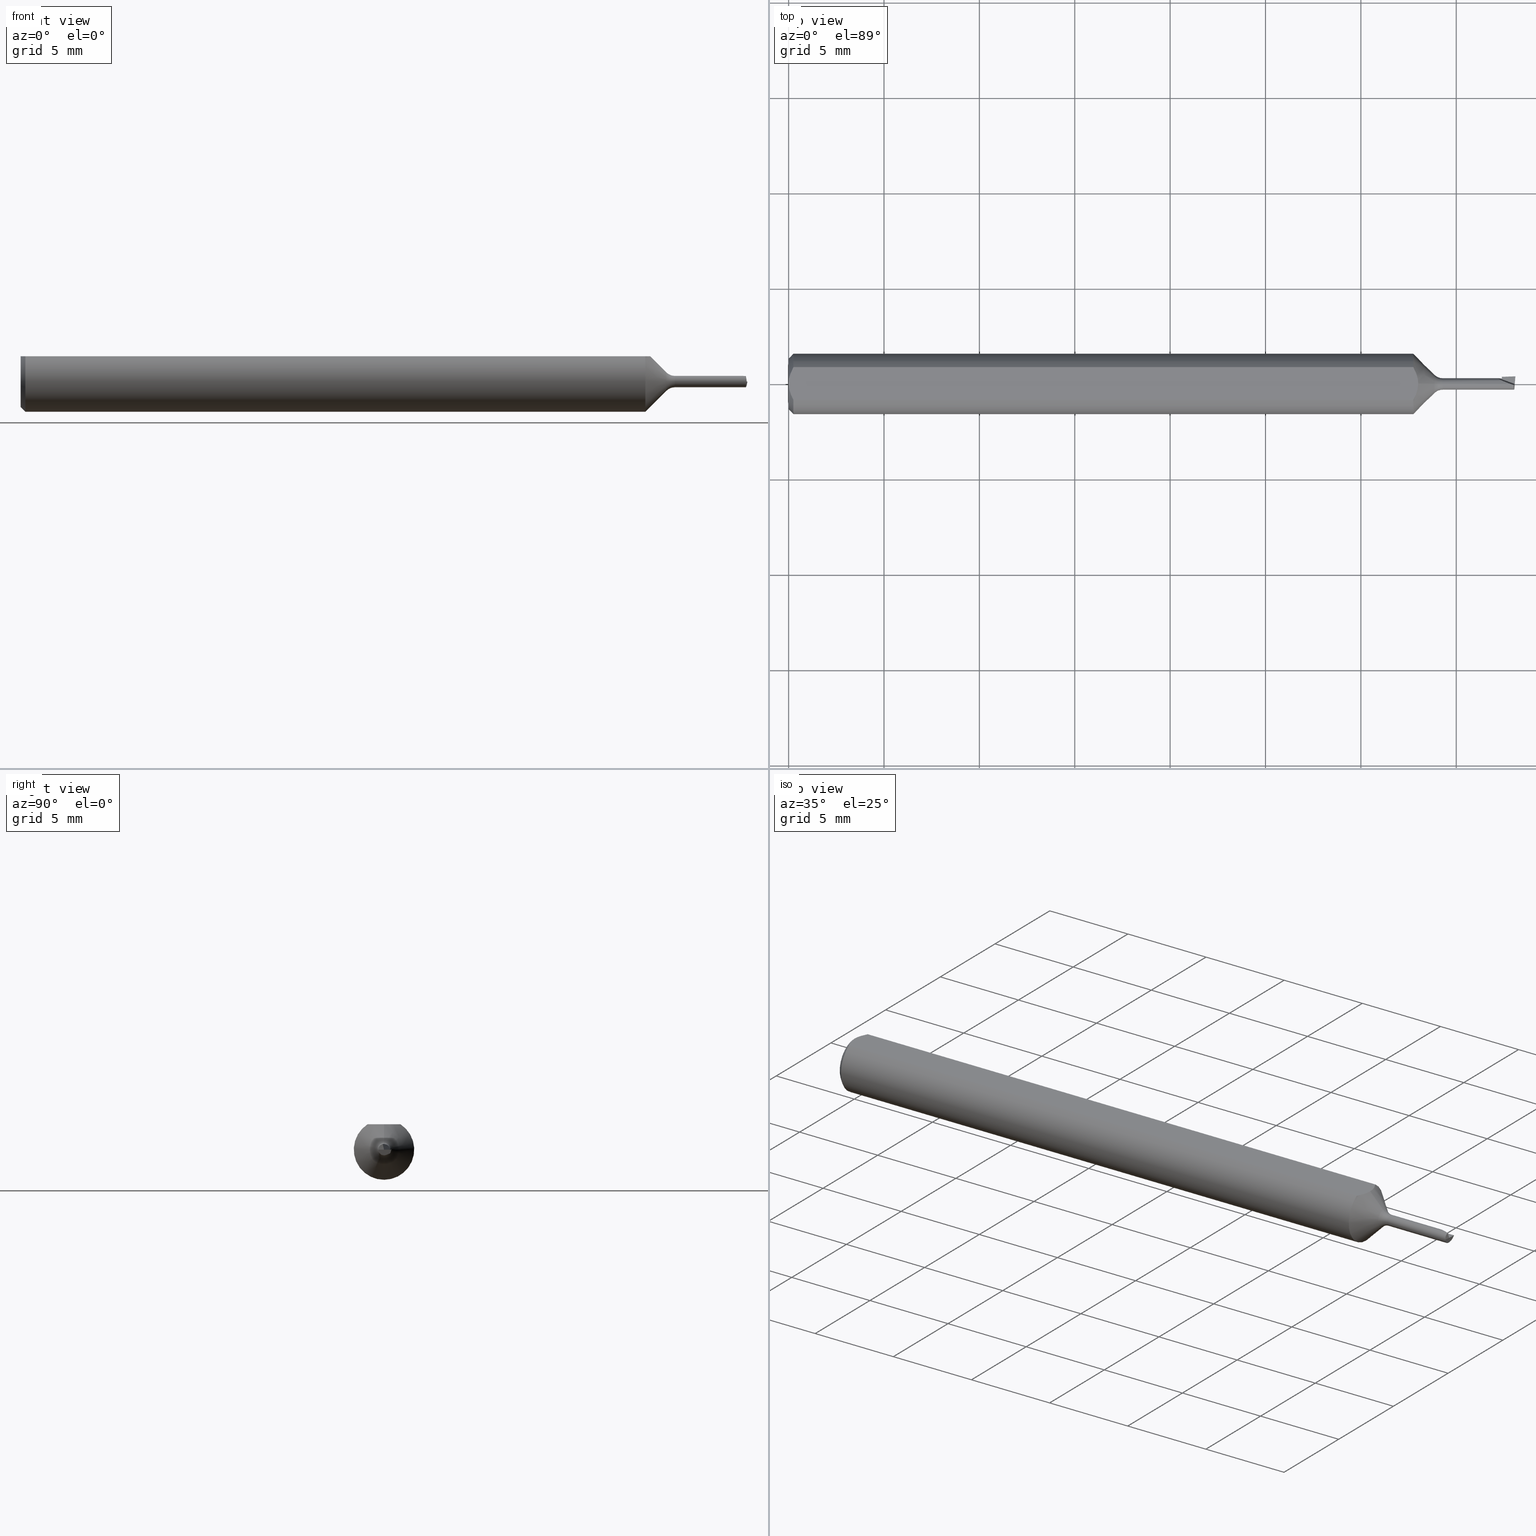
[diagram: canonical four-view strip — front | top / right | iso, engineering-drawing reading convention]
A machine part, canonical four-view strip (front | top / right | iso — engineering-drawing reading convention). The complete STEP part file that produces these views, byte-faithful:
ISO-10303-21;
HEADER;
FILE_DESCRIPTION (( 'STEP AP203' ),
    '1' );
FILE_NAME ('210019-MB030150.STEP',
    '2025-01-29T00:18:05',
    ( '' ),
    ( '' ),
    'SwSTEP 2.0',
    'SolidWorks 2024',
    '' );
FILE_SCHEMA (( 'CONFIG_CONTROL_DESIGN' ));
ENDSEC;

DATA;
#1 = DIRECTION ( 'NONE',  ( -0.000000000000000000, 1.000000000000000000, 1.150753554054431840E-16 ) ) ;
#2 = ORIENTED_EDGE ( 'NONE', *, *, #192, .F. ) ;
#3 = AXIS2_PLACEMENT_3D ( 'NONE', #206, #304, #47 ) ;
#4 = CARTESIAN_POINT ( 'NONE',  ( 1.491799500165699177, -0.0008778959275134780868, 0.01174999999999999482 ) ) ;
#5 = EDGE_CURVE ( 'NONE', #420, #46, #426, .T. ) ;
#6 = APPROVAL_STATUS ( 'not_yet_approved' ) ;
#7 = CARTESIAN_POINT ( 'NONE',  ( 1.472017056843465399, 0.01477281409233033478, -1.010624672576561083E-19 ) ) ;
#8 = EDGE_CURVE ( 'NONE', #329, #638, #681, .T. ) ;
#9 = DIRECTION ( 'NONE',  ( -0.1550261498412212613, -0.2183092626835776151, 0.9634873941531149066 ) ) ;
#10 = AXIS2_PLACEMENT_3D ( 'NONE', #29, #229, #657 ) ;
#11 = CARTESIAN_POINT ( 'NONE',  ( 1.294734733031429830, -0.02321402113692512537, 0.05235000000000001458 ) ) ;
#12 = CARTESIAN_POINT ( 'NONE',  ( 1.289400000000000102, -0.03386738844375218604, 0.05235000000000001458 ) ) ;
#13 = ORIENTED_EDGE ( 'NONE', *, *, #418, .F. ) ;
#14 = CARTESIAN_POINT ( 'NONE',  ( 1.496787257984711239, -0.01174999999999975717, 0.005718861981345455849 ) ) ;
#15 = EDGE_CURVE ( 'NONE', #584, #255, #550, .T. ) ;
#16 = CARTESIAN_POINT ( 'NONE',  ( 1.472017056843465621, 0.01477281409232995314, -0.002847225517795770773 ) ) ;
#17 = CARTESIAN_POINT ( 'NONE',  ( 1.298328875033864405, 0.01191462272770363318, 0.05235000000000001458 ) ) ;
#18 = ORIENTED_EDGE ( 'NONE', *, *, #374, .F. ) ;
#19 = CC_DESIGN_DATE_AND_TIME_ASSIGNMENT ( #462, #686, ( #212 ) ) ;
#20 = DIRECTION ( 'NONE',  ( -0.03279713600599139245, 0.9391870936218524868, 0.3418361464853330034 ) ) ;
#21 = DIRECTION ( 'NONE',  ( -0.000000000000000000, 1.000000000000000000, 1.224646799147353207E-16 ) ) ;
#22 = AXIS2_PLACEMENT_3D ( 'NONE', #66, #450, #179 ) ;
#23 = CARTESIAN_POINT ( 'NONE',  ( 1.472279564697646537, 0.007255572691233664988, -0.009863276334428213235 ) ) ;
#24 = AXIS2_PLACEMENT_3D ( 'NONE', #671, #564, #239 ) ;
#25 = ORIENTED_EDGE ( 'NONE', *, *, #317, .F. ) ;
#26 = PERSON_AND_ORGANIZATION ( #266, #421 ) ;
#27 =( BOUNDED_CURVE ( )  B_SPLINE_CURVE ( 3, ( #162, #373, #4, #225 ),
 .UNSPECIFIED., .F., .F. ) 
 B_SPLINE_CURVE_WITH_KNOTS ( ( 4, 4 ),
 ( 4.766486677901902169, 4.990162771046300350 ),
 .UNSPECIFIED. ) 
 CURVE ( )  GEOMETRIC_REPRESENTATION_ITEM ( )  RATIONAL_B_SPLINE_CURVE ( ( 1.000000000000000000, 0.9958350942953553275, 0.9958350942953553275, 1.000000000000000000 ) ) 
 REPRESENTATION_ITEM ( '' )  );
#28 = DIRECTION ( 'NONE',  ( 0.1396943646708785625, 0.000000000000000000, 0.9901946699913101169 ) ) ;
#29 = CARTESIAN_POINT ( 'NONE',  ( 1.500000000000000222, 0.000000000000000000, 0.000000000000000000 ) ) ;
#30 = ORIENTED_EDGE ( 'NONE', *, *, #460, .F. ) ;
#31 = DIRECTION ( 'NONE',  ( -1.000000000000000000, -0.000000000000000000, -0.000000000000000000 ) ) ;
#32 = EDGE_CURVE ( 'NONE', #272, #348, #439, .T. ) ;
#33 = CARTESIAN_POINT ( 'NONE',  ( 1.498622053549466759, 2.267326431501174187E-34, -1.970297135744433327E-18 ) ) ;
#34 = DATE_AND_TIME ( #44, #252 ) ;
#35 = DIRECTION ( 'NONE',  ( -1.000000000000000000, -0.000000000000000000, -0.000000000000000000 ) ) ;
#36 = DIMENSIONAL_EXPONENTS ( 1.000000000000000000, 0.000000000000000000, 0.000000000000000000, 0.000000000000000000, 0.000000000000000000, 0.000000000000000000, 0.000000000000000000 ) ;
#37 = CARTESIAN_POINT ( 'NONE',  ( 0.000000000000000000, 0.000000000000000000, 0.000000000000000000 ) ) ;
#38 = DIRECTION ( 'NONE',  ( -1.000000000000000000, -0.000000000000000000, -0.000000000000000000 ) ) ;
#39 = CARTESIAN_POINT ( 'NONE',  ( 1.498466715238065072, 0.01158705912964402666, -0.008286744200719143097 ) ) ;
#40 = CALENDAR_DATE ( 2025, 28, 1 ) ;
#41 = EDGE_LOOP ( 'NONE', ( #51, #478 ) ) ;
#42 = EDGE_CURVE ( 'NONE', #219, #354, #364, .T. ) ;
#43 = DIRECTION ( 'NONE',  ( 0.9993908270190957621, 0.03489949670250165614, 4.587456144808688538E-17 ) ) ;
#44 = CALENDAR_DATE ( 2025, 28, 1 ) ;
#45 = AXIS2_PLACEMENT_3D ( 'NONE', #37, #523, #249 ) ;
#46 = VERTEX_POINT ( 'NONE', #424 ) ;
#47 = DIRECTION ( 'NONE',  ( 0.000000000000000000, 0.000000000000000000, 1.000000000000000000 ) ) ;
#48 = VERTEX_POINT ( 'NONE', #202 ) ;
#49 = CIRCLE ( 'NONE', #106, 0.01175000000000000176 ) ;
#50 = DIRECTION ( 'NONE',  ( 0.000000000000000000, -1.000000000000000000, 0.000000000000000000 ) ) ;
#51 = ORIENTED_EDGE ( 'NONE', *, *, #192, .T. ) ;
#52 = ADVANCED_FACE ( 'NONE', ( #154 ), #122, .T. ) ;
#53 = CARTESIAN_POINT ( 'NONE',  ( 0.009999999999999887451, 0.000000000000000000, 0.000000000000000000 ) ) ;
#54 = EDGE_LOOP ( 'NONE', ( #204, #453, #536, #73, #590, #677, #316 ) ) ;
#55 = DIRECTION ( 'NONE',  ( -1.000000000000000000, -0.000000000000000000, -0.000000000000000000 ) ) ;
#56 = VECTOR ( 'NONE', #669, 39.37007874015748854 ) ;
#57 = ORIENTED_EDGE ( 'NONE', *, *, #153, .F. ) ;
#58 = CARTESIAN_POINT ( 'NONE',  ( 1.350355339059327475, 0.000000000000000000, 0.03675000000000000488 ) ) ;
#59 = AXIS2_PLACEMENT_3D ( 'NONE', #447, #242, #127 ) ;
#60 = VERTEX_POINT ( 'NONE', #319 ) ;
#61 = ADVANCED_FACE ( 'NONE', ( #580 ), #157, .F. ) ;
#62 = ORIENTED_EDGE ( 'NONE', *, *, #160, .T. ) ;
#63 = APPLICATION_CONTEXT ( 'configuration controlled 3d designs of mechanical parts and assemblies' ) ;
#64 = AXIS2_PLACEMENT_3D ( 'NONE', #409, #35, #576 ) ;
#65 = CARTESIAN_POINT ( 'NONE',  ( 0.000000000000000000, 0.03386738844375218604, 0.05235000000000001458 ) ) ;
#66 = CARTESIAN_POINT ( 'NONE',  ( 1.332677669529663822, 0.000000000000000000, 0.000000000000000000 ) ) ;
#67 = LOCAL_TIME ( 16, 18, 5.000000000000000000, #466 ) ;
#68 = CARTESIAN_POINT ( 'NONE',  ( 1.299400000000000110, -1.923771709464471706E-20, 0.05235000000000001458 ) ) ;
#69 = CARTESIAN_POINT ( 'NONE',  ( 1.497534523566025566, -0.001540512549262082389, 0.006753390145194998126 ) ) ;
#70 = CARTESIAN_POINT ( 'NONE',  ( 1.496777660844192948, -0.002606333657024755956, 0.01145729134081262604 ) ) ;
#71 = DIRECTION ( 'NONE',  ( 0.01638432125733928560, -0.4691855733945362039, -0.8829475928589286537 ) ) ;
#72 = FACE_OUTER_BOUND ( 'NONE', #41, .T. ) ;
#73 = ORIENTED_EDGE ( 'NONE', *, *, #334, .F. ) ;
#74 =( NAMED_UNIT ( * ) SI_UNIT ( $, .STERADIAN. ) SOLID_ANGLE_UNIT ( ) );
#75 =( BOUNDED_CURVE ( )  B_SPLINE_CURVE ( 3, ( #70, #391, #14, #500 ),
 .UNSPECIFIED., .F., .F. ) 
 B_SPLINE_CURVE_WITH_KNOTS ( ( 4, 4 ),
 ( 5.951760700708848439, 7.298880934359301520 ),
 .UNSPECIFIED. ) 
 CURVE ( )  GEOMETRIC_REPRESENTATION_ITEM ( )  RATIONAL_B_SPLINE_CURVE ( ( 1.000000000000000000, 0.8544039470989037710, 0.8544039470989037710, 1.000000000000000000 ) ) 
 REPRESENTATION_ITEM ( '' )  );
#76 = DIRECTION ( 'NONE',  ( 1.000000000000000000, 0.000000000000000000, 0.000000000000000000 ) ) ;
#77 = AXIS2_PLACEMENT_3D ( 'NONE', #416, #519, #578 ) ;
#78 = CARTESIAN_POINT ( 'NONE',  ( 1.471999999999999975, 0.000000000000000000, 0.000000000000000000 ) ) ;
#79 = VERTEX_POINT ( 'NONE', #527 ) ;
#80 = CARTESIAN_POINT ( 'NONE',  ( 1.489387500928224917, 0.000000000000000000, 0.01175000000000000176 ) ) ;
#81 = CARTESIAN_POINT ( 'NONE',  ( 1.350355339059327475, 0.000000000000000000, 0.000000000000000000 ) ) ;
#82 = PLANE ( 'NONE',  #535 ) ;
#83 = VECTOR ( 'NONE', #280, 39.37007874015748143 ) ;
#84 = ORIENTED_EDGE ( 'NONE', *, *, #320, .F. ) ;
#85 = LINE ( 'NONE', #190, #507 ) ;
#86 = CARTESIAN_POINT ( 'NONE',  ( 0.000000000000000000, -0.03386738844375218604, 0.05235000000000001458 ) ) ;
#87 = ADVANCED_FACE ( 'NONE', ( #99 ), #314, .T. ) ;
#88 = ORIENTED_EDGE ( 'NONE', *, *, #438, .F. ) ;
#89 = COORDINATED_UNIVERSAL_TIME_OFFSET ( 8, 0, .BEHIND. ) ;
#90 = EDGE_CURVE ( 'NONE', #161, #101, #583, .T. ) ;
#91 = DIRECTION ( 'NONE',  ( -0.08715574274767845520, -0.9961946980917436578, -4.949497301355338130E-15 ) ) ;
#92 = CARTESIAN_POINT ( 'NONE',  ( 1.490575711937203396, 0.01980815216079209740, 0.06931876481191066863 ) ) ;
#93 = SECURITY_CLASSIFICATION_LEVEL ( 'unclassified' ) ;
#94 = CARTESIAN_POINT ( 'NONE',  ( 1.559700619860260318, 0.01205703940662237496, -0.008115685369206841401 ) ) ;
#95 = DIRECTION ( 'NONE',  ( -1.000000000000000000, -0.000000000000000000, -0.000000000000000000 ) ) ;
#96 = PERSON_AND_ORGANIZATION_ROLE ( 'creator' ) ;
#97 = EDGE_CURVE ( 'NONE', #275, #630, #661, .T. ) ;
#98 = ADVANCED_FACE ( 'NONE', ( #639 ), #414, .F. ) ;
#99 = FACE_OUTER_BOUND ( 'NONE', #224, .T. ) ;
#100 = ORIENTED_EDGE ( 'NONE', *, *, #97, .T. ) ;
#101 = VERTEX_POINT ( 'NONE', #477 ) ;
#102 = PERSON_AND_ORGANIZATION ( #266, #421 ) ;
#103 = ORIENTED_EDGE ( 'NONE', *, *, #374, .T. ) ;
#104 = DIRECTION ( 'NONE',  ( 0.000000000000000000, 0.000000000000000000, -1.000000000000000000 ) ) ;
#105 = EDGE_LOOP ( 'NONE', ( #668, #394, #327, #103 ) ) ;
#106 = AXIS2_PLACEMENT_3D ( 'NONE', #539, #55, #270 ) ;
#107 = DIRECTION ( 'NONE',  ( 0.02467767077832652353, -0.7066760308408363001, 0.7071067811865461294 ) ) ;
#108 = ORIENTED_EDGE ( 'NONE', *, *, #438, .T. ) ;
#109 = CARTESIAN_POINT ( 'NONE',  ( 1.500000000000000444, 0.01574999999999999664, 0.000000000000000000 ) ) ;
#110 = ORIENTED_EDGE ( 'NONE', *, *, #241, .T. ) ;
#111 = ORIENTED_EDGE ( 'NONE', *, *, #90, .F. ) ;
#112 = CARTESIAN_POINT ( 'NONE',  ( 1.500000000000000444, 0.06235000000000000264, 0.05235000000000001458 ) ) ;
#113 = ADVANCED_FACE ( 'NONE', ( #308 ), #253, .T. ) ;
#114 = CC_DESIGN_APPROVAL ( #387, ( #212 ) ) ;
#115 = ORIENTED_EDGE ( 'NONE', *, *, #422, .T. ) ;
#116 = VECTOR ( 'NONE', #552, 39.37007874015748854 ) ;
#117 = CARTESIAN_POINT ( 'NONE',  ( 1.497415954030127283, 0.004018736684076542123, -0.01104138829423444677 ) ) ;
#118 = EDGE_CURVE ( 'NONE', #427, #275, #470, .T. ) ;
#119 = CARTESIAN_POINT ( 'NONE',  ( 0.000000000000000000, 0.000000000000000000, 0.05235000000000033377 ) ) ;
#120 = AXIS2_PLACEMENT_3D ( 'NONE', #81, #38, #246 ) ;
#121 = DATE_AND_TIME ( #602, #597 ) ;
#122 = CONICAL_SURFACE ( 'NONE', #45, 0.05235000000000033377, 0.7853981633974376209 ) ;
#123 = FACE_OUTER_BOUND ( 'NONE', #704, .T. ) ;
#124 = CARTESIAN_POINT ( 'NONE',  ( 0.000000000000000000, 0.000000000000000000, 0.000000000000000000 ) ) ;
#125 = EDGE_CURVE ( 'NONE', #584, #432, #605, .T. ) ;
#126 = LINE ( 'NONE', #340, #532 ) ;
#127 = DIRECTION ( 'NONE',  ( 0.9396926207859126468, -0.3420201433256567780, 0.000000000000000000 ) ) ;
#128 = ORIENTED_EDGE ( 'NONE', *, *, #449, .F. ) ;
#129 = VECTOR ( 'NONE', #482, 39.37007874015748143 ) ;
#130 = CARTESIAN_POINT ( 'NONE',  ( 1.411539978888987745, 0.04933852948932382354, 6.000571133729248059E-20 ) ) ;
#131 = LINE ( 'NONE', #65, #83 ) ;
#132 = MANIFOLD_SOLID_BREP ( 'Cut-Extrude8', #417 ) ;
#133 = ORIENTED_EDGE ( 'NONE', *, *, #258, .T. ) ;
#134 = PERSON_AND_ORGANIZATION ( #266, #421 ) ;
#135 = PRODUCT_DEFINITION_SHAPE ( 'NONE', 'NONE',  #212 ) ;
#136 = CARTESIAN_POINT ( 'NONE',  ( 1.471999999999999975, 0.01439424778740058114, -0.007265011087326080433 ) ) ;
#137 = AXIS2_PLACEMENT_3D ( 'NONE', #627, #636, #311 ) ;
#138 = DIRECTION ( 'NONE',  ( -1.000000000000000000, -0.000000000000000000, -0.000000000000000000 ) ) ;
#139 = ORIENTED_EDGE ( 'NONE', *, *, #540, .F. ) ;
#140 = LINE ( 'NONE', #675, #395 ) ;
#141 = ADVANCED_FACE ( 'NONE', ( #485 ), #164, .F. ) ;
#142 = CARTESIAN_POINT ( 'NONE',  ( 1.471654879888367073, 0.02514420511175628412, 6.402768735150616918E-18 ) ) ;
#143 = CIRCLE ( 'NONE', #24, 0.06235000000000000264 ) ;
#144 = ORIENTED_EDGE ( 'NONE', *, *, #281, .T. ) ;
#145 = PERSON_AND_ORGANIZATION_ROLE ( 'classification_officer' ) ;
#146 = VECTOR ( 'NONE', #437, 39.37007874015748143 ) ;
#147 = CARTESIAN_POINT ( 'NONE',  ( 1.299400000000000110, -1.923771709464471706E-20, 0.05235000000000001458 ) ) ;
#148 = DIRECTION ( 'NONE',  ( -0.08715574274766764440, -0.9961946980917447680, -1.182878904194731433E-16 ) ) ;
#149 = COORDINATED_UNIVERSAL_TIME_OFFSET ( 8, 0, .BEHIND. ) ;
#150 = DIRECTION ( 'NONE',  ( 0.000000000000000000, 0.000000000000000000, 1.000000000000000000 ) ) ;
#151 = EDGE_CURVE ( 'NONE', #169, #528, #263, .T. ) ;
#152 = CARTESIAN_POINT ( 'NONE',  ( 0.004679365186825696840, -0.02325953974091124130, 0.05235000000000001458 ) ) ;
#153 = EDGE_CURVE ( 'NONE', #642, #562, #291, .T. ) ;
#154 = FACE_OUTER_BOUND ( 'NONE', #269, .T. ) ;
#155 = VECTOR ( 'NONE', #71, 39.37007874015748854 ) ;
#156 = EDGE_LOOP ( 'NONE', ( #133, #623, #692, #321, #234, #301 ) ) ;
#157 = PLANE ( 'NONE',  #137 ) ;
#158 = ORIENTED_EDGE ( 'NONE', *, *, #97, .F. ) ;
#159 = CARTESIAN_POINT ( 'NONE',  ( 0.000000000000000000, 0.000000000000000000, 0.05235000000000033377 ) ) ;
#160 = EDGE_CURVE ( 'NONE', #255, #584, #612, .T. ) ;
#161 = VERTEX_POINT ( 'NONE', #117 ) ;
#162 = CARTESIAN_POINT ( 'NONE',  ( 1.496777660844192948, -0.002606333657024755956, 0.01145729134081262604 ) ) ;
#163 = ORIENTED_EDGE ( 'NONE', *, *, #644, .T. ) ;
#164 = PLANE ( 'NONE',  #494 ) ;
#165 = ORIENTED_EDGE ( 'NONE', *, *, #210, .F. ) ;
#166 = ORIENTED_EDGE ( 'NONE', *, *, #665, .F. ) ;
#167 = CARTESIAN_POINT ( 'NONE',  ( 1.472032873564894428, 0.01243357039385957485, -0.007978639297573635047 ) ) ;
#168 = ADVANCED_FACE ( 'NONE', ( #705 ), #543, .F. ) ;
#169 = VERTEX_POINT ( 'NONE', #377 ) ;
#170 = EDGE_CURVE ( 'NONE', #630, #293, #401, .T. ) ;
#171 = CARTESIAN_POINT ( 'NONE',  ( 1.350355339059327475, 0.000000000000000000, 0.000000000000000000 ) ) ;
#172 = TOROIDAL_SURFACE ( 'NONE', #298, 0.03675000000000000488, 0.02500000000000000486 ) ;
#173 = PLANE ( 'NONE',  #423 ) ;
#174 = CARTESIAN_POINT ( 'NONE',  ( 1.471999999999999975, 0.01477221845423104009, -1.385417046086357008E-18 ) ) ;
#175 = DIRECTION ( 'NONE',  ( -1.000000000000000000, 0.000000000000000000, 0.000000000000000000 ) ) ;
#176 = CARTESIAN_POINT ( 'NONE',  ( 1.496623025416520703, -0.01175000000000035391, -0.006882990642115814801 ) ) ;
#177 = CARTESIAN_POINT ( 'NONE',  ( 1.350355339059327475, 0.000000000000000000, 0.000000000000000000 ) ) ;
#178 = EDGE_CURVE ( 'NONE', #696, #432, #480, .T. ) ;
#179 = DIRECTION ( 'NONE',  ( 0.000000000000000000, 0.000000000000000000, 1.000000000000000000 ) ) ;
#180 = CARTESIAN_POINT ( 'NONE',  ( 1.289400000000000102, 0.03386738844375218604, 0.05235000000000001458 ) ) ;
#181 = ORIENTED_EDGE ( 'NONE', *, *, #688, .F. ) ;
#182 = CARTESIAN_POINT ( 'NONE',  ( 1.499059002187673517, 0.01305697197173264455, -0.004999999999999995767 ) ) ;
#183 = DIRECTION ( 'NONE',  ( 0.000000000000000000, 1.000000000000000000, 1.150753554054431840E-16 ) ) ;
#184 = FACE_OUTER_BOUND ( 'NONE', #663, .T. ) ;
#185 = ORIENTED_EDGE ( 'NONE', *, *, #385, .T. ) ;
#186 = CARTESIAN_POINT ( 'NONE',  ( 1.496964390834621739, 1.438959988998140299E-18, -0.01175000000000000176 ) ) ;
#187 = LINE ( 'NONE', #444, #691 ) ;
#188 = EDGE_CURVE ( 'NONE', #79, #169, #695, .T. ) ;
#189 = VERTEX_POINT ( 'NONE', #333 ) ;
#190 = CARTESIAN_POINT ( 'NONE',  ( 1.560200597524541877, 0.004018736684076542123, -0.01104138829423444677 ) ) ;
#191 = CARTESIAN_POINT ( 'NONE',  ( 0.01000000000000839627, -0.03386738844395137393, 0.05235000000000001458 ) ) ;
#192 = EDGE_CURVE ( 'NONE', #275, #541, #524, .T. ) ;
#193 = ORIENTED_EDGE ( 'NONE', *, *, #5, .T. ) ;
#194 = APPROVAL_ROLE ( '' ) ;
#195 = CARTESIAN_POINT ( 'NONE',  ( 1.332677669529663822, 0.000000000000000000, 0.01907233047033634471 ) ) ;
#196 = LOCAL_TIME ( 16, 18, 5.000000000000000000, #305 ) ;
#197 = DIRECTION ( 'NONE',  ( 0.1396943646708928011, 0.000000000000000000, -0.9901946699913082295 ) ) ;
#198 = DATE_AND_TIME ( #362, #542 ) ;
#199 = LINE ( 'NONE', #86, #607 ) ;
#200 = DIRECTION ( 'NONE',  ( 0.000000000000000000, 0.000000000000000000, 1.000000000000000000 ) ) ;
#201 = AXIS2_PLACEMENT_3D ( 'NONE', #92, #369, #197 ) ;
#202 = CARTESIAN_POINT ( 'NONE',  ( 1.497594061753036998, -0.01175000000000001391, 5.935378693072228123E-16 ) ) ;
#203 = APPROVAL_STATUS ( 'not_yet_approved' ) ;
#204 = ORIENTED_EDGE ( 'NONE', *, *, #42, .T. ) ;
#205 =( GEOMETRIC_REPRESENTATION_CONTEXT ( 3 ) GLOBAL_UNCERTAINTY_ASSIGNED_CONTEXT ( ( #244 ) ) GLOBAL_UNIT_ASSIGNED_CONTEXT ( ( #508, #344, #74 ) ) REPRESENTATION_CONTEXT ( 'NONE', 'WORKASPACE' ) );
#206 = CARTESIAN_POINT ( 'NONE',  ( 1.289400000000000102, 0.000000000000000000, 0.000000000000000000 ) ) ;
#207 = VECTOR ( 'NONE', #386, 39.37007874015748854 ) ;
#208 = EDGE_LOOP ( 'NONE', ( #475, #436, #588, #181 ) ) ;
#209 = EDGE_LOOP ( 'NONE', ( #111, #163, #185, #425, #648, #352 ) ) ;
#210 = EDGE_CURVE ( 'NONE', #541, #275, #581, .T. ) ;
#211 = ORIENTED_EDGE ( 'NONE', *, *, #118, .T. ) ;
#212 = PRODUCT_DEFINITION ( 'UNKNOWN', '', #666, #407 ) ;
#213 = AXIS2_PLACEMENT_3D ( 'NONE', #358, #260, #574 ) ;
#214 = ORIENTED_EDGE ( 'NONE', *, *, #365, .F. ) ;
#215 = DIRECTION ( 'NONE',  ( -1.000000000000000000, -0.000000000000000000, -0.000000000000000000 ) ) ;
#216 = CONICAL_SURFACE ( 'NONE', #22, 0.01907233047033634471, 0.7853981633974490562 ) ;
#217 = ORIENTED_EDGE ( 'NONE', *, *, #601, .T. ) ;
#218 = EDGE_CURVE ( 'NONE', #46, #432, #672, .T. ) ;
#219 = VERTEX_POINT ( 'NONE', #109 ) ;
#220 = CC_DESIGN_PERSON_AND_ORGANIZATION_ASSIGNMENT ( #575, #517, ( #666 ) ) ;
#221 = ORIENTED_EDGE ( 'NONE', *, *, #218, .F. ) ;
#222 = DIRECTION ( 'NONE',  ( 1.000000000000000000, 0.000000000000000000, 0.000000000000000000 ) ) ;
#223 = CARTESIAN_POINT ( 'NONE',  ( 1.489387500928224917, 0.000000000000000000, 0.01175000000000000176 ) ) ;
#224 = EDGE_LOOP ( 'NONE', ( #144, #405, #375 ) ) ;
#225 = CARTESIAN_POINT ( 'NONE',  ( 1.489387500928224917, 0.000000000000000000, 0.01175000000000000176 ) ) ;
#226 = APPROVAL_ROLE ( '' ) ;
#227 = AXIS2_PLACEMENT_3D ( 'NONE', #558, #76, #228 ) ;
#228 = DIRECTION ( 'NONE',  ( 0.000000000000000000, 0.000000000000000000, -1.000000000000000000 ) ) ;
#229 = DIRECTION ( 'NONE',  ( 1.000000000000000000, 0.000000000000000000, 0.000000000000000000 ) ) ;
#230 = DIRECTION ( 'NONE',  ( 1.000000000000000000, 0.000000000000000000, 0.000000000000000000 ) ) ;
#231 = CARTESIAN_POINT ( 'NONE',  ( 1.298328236633304877, -0.01191784003313683775, 0.05235000000000002152 ) ) ;
#232 = CARTESIAN_POINT ( 'NONE',  ( 1.289400000000000102, 0.000000000000000000, 0.000000000000000000 ) ) ;
#233 = CONICAL_SURFACE ( 'NONE', #64, 0.01907233047033634471, 0.7853981633974490562 ) ;
#234 = ORIENTED_EDGE ( 'NONE', *, *, #469, .F. ) ;
#235 = CARTESIAN_POINT ( 'NONE',  ( 1.472017056843465399, 0.01477281409233033478, -1.010624672576561083E-19 ) ) ;
#236 = CARTESIAN_POINT ( 'NONE',  ( 1.299399999999999888, 0.005921331895061767055, 0.05235000000000002152 ) ) ;
#237 = ORIENTED_EDGE ( 'NONE', *, *, #118, .F. ) ;
#238 = CARTESIAN_POINT ( 'NONE',  ( 1.471999999999999975, 0.01243179049922037323, -0.007979287126242436481 ) ) ;
#239 = DIRECTION ( 'NONE',  ( 0.000000000000000000, 0.000000000000000000, -1.000000000000000000 ) ) ;
#240 = AXIS2_PLACEMENT_3D ( 'NONE', #232, #347, #662 ) ;
#241 = EDGE_CURVE ( 'NONE', #432, #46, #49, .T. ) ;
#242 = DIRECTION ( 'NONE',  ( -0.3303660895493409355, -0.9076733711903737234, -0.2588190451025176864 ) ) ;
#243 = ORIENTED_EDGE ( 'NONE', *, *, #178, .T. ) ;
#244 = UNCERTAINTY_MEASURE_WITH_UNIT (LENGTH_MEASURE( 1.000000000000000082E-05 ), #508, 'distance_accuracy_value', 'NONE');
#245 = EDGE_CURVE ( 'NONE', #189, #696, #27, .T. ) ;
#246 = DIRECTION ( 'NONE',  ( 0.000000000000000000, 0.000000000000000000, 1.000000000000000000 ) ) ;
#247 = FACE_OUTER_BOUND ( 'NONE', #343, .T. ) ;
#248 = CARTESIAN_POINT ( 'NONE',  ( 0.000000000000000000, 0.000000000000000000, 0.000000000000000000 ) ) ;
#249 = DIRECTION ( 'NONE',  ( 0.000000000000000000, 0.000000000000000000, -1.000000000000000000 ) ) ;
#250 = DATE_TIME_ROLE ( 'classification_date' ) ;
#251 = FACE_OUTER_BOUND ( 'NONE', #556, .T. ) ;
#252 = LOCAL_TIME ( 16, 18, 5.000000000000000000, #149 ) ;
#253 = CYLINDRICAL_SURFACE ( 'NONE', #318, 0.01175000000000000176 ) ;
#254 = CARTESIAN_POINT ( 'NONE',  ( -1.070637973615595209E-15, -0.005965286321711172658, 0.05235000000000002152 ) ) ;
#255 = VERTEX_POINT ( 'NONE', #278 ) ;
#256 = CARTESIAN_POINT ( 'NONE',  ( 0.000000000000000000, 1.438959988998140299E-18, -0.01175000000000000176 ) ) ;
#257 = ORIENTED_EDGE ( 'NONE', *, *, #125, .F. ) ;
#258 = EDGE_CURVE ( 'NONE', #79, #354, #299, .T. ) ;
#259 = AXIS2_PLACEMENT_3D ( 'NONE', #142, #303, #336 ) ;
#260 = DIRECTION ( 'NONE',  ( 0.03081442660544946380, -0.8824097250418050375, 0.4694715627858874751 ) ) ;
#261 = AXIS2_PLACEMENT_3D ( 'NONE', #78, #138, #351 ) ;
#262 = ORIENTED_EDGE ( 'NONE', *, *, #412, .T. ) ;
#263 = CIRCLE ( 'NONE', #655, 0.01175000000000000176 ) ;
#264 = CC_DESIGN_PERSON_AND_ORGANIZATION_ASSIGNMENT ( #309, #520, ( #666 ) ) ;
#265 = DIRECTION ( 'NONE',  ( 0.000000000000000000, 0.000000000000000000, -1.000000000000000000 ) ) ;
#266 = PERSON ( 'UNSPECIFIED', 'UNSPECIFIED', 'UNSPECIFIED', ('UNSPECIFIED'), ('UNSPECIFIED'), ('UNSPECIFIED') ) ;
#267 = ORIENTED_EDGE ( 'NONE', *, *, #32, .T. ) ;
#268 = B_SPLINE_CURVE_WITH_KNOTS ( 'NONE', 3,
 ( #68, #276, #231, #11, #603, #660 ),
 .UNSPECIFIED., .F., .F.,
 ( 4, 2, 4 ),
 ( 0.003036113165764197080, 0.003485293315685289960, 0.003934473465606382406 ),
 .UNSPECIFIED. ) ;
#269 = EDGE_LOOP ( 'NONE', ( #165, #461, #458, #158 ) ) ;
#270 = DIRECTION ( 'NONE',  ( 0.000000000000000000, 0.000000000000000000, 1.000000000000000000 ) ) ;
#271 = ADVANCED_FACE ( 'NONE', ( #72 ), #82, .F. ) ;
#272 = VERTEX_POINT ( 'NONE', #651 ) ;
#273 = AXIS2_PLACEMENT_3D ( 'NONE', #649, #215, #641 ) ;
#274 = CARTESIAN_POINT ( 'NONE',  ( 0.001063697276021360232, 0.01189177144351692694, 0.05235000000000001458 ) ) ;
#275 = VERTEX_POINT ( 'NONE', #119 ) ;
#276 = CARTESIAN_POINT ( 'NONE',  ( 1.299399999999999444, -0.005923251185922118883, 0.05235000000000002152 ) ) ;
#277 = EDGE_LOOP ( 'NONE', ( #481, #193, #379, #531, #700, #545, #370, #506 ) ) ;
#278 = CARTESIAN_POINT ( 'NONE',  ( 1.332677669529663822, 2.335686846277793492E-18, -0.01907233047033634471 ) ) ;
#279 = PLANE ( 'NONE',  #544 ) ;
#280 = DIRECTION ( 'NONE',  ( 1.000000000000000000, 0.000000000000000000, 0.000000000000000000 ) ) ;
#281 = EDGE_CURVE ( 'NONE', #354, #189, #393, .T. ) ;
#282 = AXIS2_PLACEMENT_3D ( 'NONE', #124, #388, #230 ) ;
#283 = CARTESIAN_POINT ( 'NONE',  ( 1.472098620760154741, 0.01243712911527014402, -0.007977344028908142301 ) ) ;
#284 = CARTESIAN_POINT ( 'NONE',  ( 0.000000000000000000, 0.000000000000000000, 0.000000000000000000 ) ) ;
#285 = FACE_OUTER_BOUND ( 'NONE', #448, .T. ) ;
#286 = CARTESIAN_POINT ( 'NONE',  ( 1.499177540283156418, 0.01339621443262957630, -0.004370146806241751412 ) ) ;
#287 = CARTESIAN_POINT ( 'NONE',  ( 1.498621151246821936, -1.031336641993702984E-05, 6.153830309977643872E-16 ) ) ;
#288 = VERTEX_POINT ( 'NONE', #23 ) ;
#289 = ADVANCED_FACE ( 'NONE', ( #184 ), #546, .T. ) ;
#290 = LINE ( 'NONE', #611, #155 ) ;
#291 = B_SPLINE_CURVE_WITH_KNOTS ( 'NONE', 3,
 ( #330, #167, #589, #380 ),
 .UNSPECIFIED., .F., .F.,
 ( 4, 4 ),
 ( 2.003309471851044545E-07, 2.709441602441050249E-06 ),
 .UNSPECIFIED. ) ;
#292 = DIRECTION ( 'NONE',  ( -1.000000000000000000, -0.000000000000000000, -0.000000000000000000 ) ) ;
#293 = VERTEX_POINT ( 'NONE', #501 ) ;
#294 = APPROVAL ( #411, 'UNSPECIFIED' ) ;
#295 = DIRECTION ( 'NONE',  ( 0.9993908270190960952, 0.03489949670248750080, -0.000000000000000000 ) ) ;
#296 = CC_DESIGN_APPROVAL ( #294, ( #666 ) ) ;
#297 = DIRECTION ( 'NONE',  ( -0.7071067811865469066, 0.000000000000000000, 0.7071067811865480168 ) ) ;
#298 = AXIS2_PLACEMENT_3D ( 'NONE', #177, #292, #390 ) ;
#299 = LINE ( 'NONE', #512, #366 ) ;
#300 =( BOUNDED_CURVE ( )  B_SPLINE_CURVE ( 3, ( #7, #16, #599, #283 ),
 .UNSPECIFIED., .F., .T. ) 
 B_SPLINE_CURVE_WITH_KNOTS ( ( 4, 4 ),
 ( 3.141592653589793116, 3.711250008117358945 ),
 .UNSPECIFIED. ) 
 CURVE ( )  GEOMETRIC_REPRESENTATION_ITEM ( )  RATIONAL_B_SPLINE_CURVE ( ( 1.000000000000000000, 0.9731398714915228121, 0.9731398714915228121, 1.000000000000000000 ) ) 
 REPRESENTATION_ITEM ( '' )  );
#301 = ORIENTED_EDGE ( 'NONE', *, *, #188, .F. ) ;
#302 = APPLICATION_PROTOCOL_DEFINITION ( 'international standard', 'config_control_design', 1994, #525 ) ;
#303 = DIRECTION ( 'NONE',  ( -0.9993908270190957621, -0.03489949670249904018, 0.000000000000000000 ) ) ;
#304 = DIRECTION ( 'NONE',  ( -1.000000000000000000, -0.000000000000000000, -0.000000000000000000 ) ) ;
#305 = COORDINATED_UNIVERSAL_TIME_OFFSET ( 8, 0, .BEHIND. ) ;
#306 = CARTESIAN_POINT ( 'NONE',  ( 1.471999999999999975, 0.004018736684076542123, -0.01104138829423444677 ) ) ;
#307 = ADVANCED_FACE ( 'NONE', ( #247 ), #341, .F. ) ;
#308 = FACE_OUTER_BOUND ( 'NONE', #538, .T. ) ;
#309 = PERSON_AND_ORGANIZATION ( #266, #421 ) ;
#310 = LINE ( 'NONE', #683, #633 ) ;
#311 = DIRECTION ( 'NONE',  ( 0.000000000000000000, 0.000000000000000000, -1.000000000000000000 ) ) ;
#312 = APPROVAL_ROLE ( '' ) ;
#313 = AXIS2_PLACEMENT_3D ( 'NONE', #53, #222, #265 ) ;
#314 = PLANE ( 'NONE',  #201 ) ;
#315 = DATE_AND_TIME ( #40, #67 ) ;
#316 = ORIENTED_EDGE ( 'NONE', *, *, #472, .F. ) ;
#317 = EDGE_CURVE ( 'NONE', #427, #484, #131, .T. ) ;
#318 = AXIS2_PLACEMENT_3D ( 'NONE', #467, #684, #200 ) ;
#319 = CARTESIAN_POINT ( 'NONE',  ( 1.472109838801249904, 0.01211588644912026461, -0.004999999999999995767 ) ) ;
#320 = EDGE_CURVE ( 'NONE', #60, #645, #187, .T. ) ;
#321 = ORIENTED_EDGE ( 'NONE', *, *, #8, .F. ) ;
#322 = CC_DESIGN_APPROVAL ( #618, ( #454 ) ) ;
#323 = CONICAL_SURFACE ( 'NONE', #227, 0.05235000000000033377, 0.7853981633974376209 ) ;
#324 = DIRECTION ( 'NONE',  ( -1.000000000000000000, -0.000000000000000000, -0.000000000000000000 ) ) ;
#325 = ORIENTED_EDGE ( 'NONE', *, *, #658, .T. ) ;
#326 = CARTESIAN_POINT ( 'NONE',  ( 1.332677669529663822, 0.000000000000000000, 0.000000000000000000 ) ) ;
#327 = ORIENTED_EDGE ( 'NONE', *, *, #469, .T. ) ;
#328 = DIRECTION ( 'NONE',  ( -1.000000000000000000, -0.000000000000000000, -0.000000000000000000 ) ) ;
#329 = VERTEX_POINT ( 'NONE', #174 ) ;
#330 = CARTESIAN_POINT ( 'NONE',  ( 1.471999999999999975, 0.01243179049922037323, -0.007979287126242436481 ) ) ;
#331 = CIRCLE ( 'NONE', #240, 0.06235000000000000264 ) ;
#332 = ORIENTED_EDGE ( 'NONE', *, *, #15, .F. ) ;
#333 = CARTESIAN_POINT ( 'NONE',  ( 1.496777660844192948, -0.002606333657024755956, 0.01145729134081262604 ) ) ;
#334 = EDGE_CURVE ( 'NONE', #161, #420, #631, .T. ) ;
#335 = CARTESIAN_POINT ( 'NONE',  ( 1.289400000000000102, 0.03386738844375218604, 0.05235000000000001458 ) ) ;
#336 = DIRECTION ( 'NONE',  ( 0.03489949670249904018, -0.9993908270190957621, 0.000000000000000000 ) ) ;
#337 = ADVANCED_FACE ( 'NONE', ( #452 ), #172, .F. ) ;
#338 = DIRECTION ( 'NONE',  ( 0.9993908270190960952, 0.03489949670248750080, -0.000000000000000000 ) ) ;
#339 = APPLICATION_PROTOCOL_DEFINITION ( 'international standard', 'config_control_design', 1994, #63 ) ;
#340 = CARTESIAN_POINT ( 'NONE',  ( 1.471999999999999975, 0.01175000000000000176, -1.733199908819882964E-18 ) ) ;
#341 = PLANE ( 'NONE',  #59 ) ;
#342 = EDGE_CURVE ( 'NONE', #541, #293, #457, .T. ) ;
#343 = EDGE_LOOP ( 'NONE', ( #473, #431, #128, #513 ) ) ;
#344 =( NAMED_UNIT ( * ) PLANE_ANGLE_UNIT ( ) SI_UNIT ( $, .RADIAN. ) );
#345 = FACE_OUTER_BOUND ( 'NONE', #685, .T. ) ;
#346 = ADVANCED_FACE ( 'NONE', ( #123 ), #553, .T. ) ;
#347 = DIRECTION ( 'NONE',  ( -1.000000000000000000, -0.000000000000000000, -0.000000000000000000 ) ) ;
#348 = VERTEX_POINT ( 'NONE', #12 ) ;
#349 = PERSON_AND_ORGANIZATION_ROLE ( 'design_owner' ) ;
#350 = CARTESIAN_POINT ( 'NONE',  ( 1.496362207182281301, -0.006882990642116410679, -0.01175000000000000176 ) ) ;
#351 = DIRECTION ( 'NONE',  ( 0.000000000000000000, 0.000000000000000000, 1.000000000000000000 ) ) ;
#352 = ORIENTED_EDGE ( 'NONE', *, *, #522, .F. ) ;
#353 = CYLINDRICAL_SURFACE ( 'NONE', #568, 0.01175000000000000176 ) ;
#354 = VERTEX_POINT ( 'NONE', #287 ) ;
#355 = AXIS2_PLACEMENT_3D ( 'NONE', #171, #382, #547 ) ;
#356 = PERSON_AND_ORGANIZATION ( #266, #421 ) ;
#357 = CARTESIAN_POINT ( 'NONE',  ( 1.500296196177056229, 0.01913553779562355076, 7.469896857675720077E-16 ) ) ;
#358 = CARTESIAN_POINT ( 'NONE',  ( 1.472017056843465399, 0.01477281409233033478, -1.010624672576561083E-19 ) ) ;
#359 = SHAPE_DEFINITION_REPRESENTATION ( #135, #428 ) ;
#360 = PLANE ( 'NONE',  #396 ) ;
#361 = ORIENTED_EDGE ( 'NONE', *, *, #540, .T. ) ;
#362 = CALENDAR_DATE ( 2025, 28, 1 ) ;
#363 = APPROVAL_PERSON_ORGANIZATION ( #526, #294, #194 ) ;
#364 = LINE ( 'NONE', #33, #503 ) ;
#365 = EDGE_CURVE ( 'NONE', #484, #272, #331, .T. ) ;
#366 = VECTOR ( 'NONE', #600, 39.37007874015748854 ) ;
#367 = ORIENTED_EDGE ( 'NONE', *, *, #125, .T. ) ;
#368 = EDGE_CURVE ( 'NONE', #484, #566, #594, .T. ) ;
#369 = DIRECTION ( 'NONE',  ( 0.9864997997699010979, -0.08630754905050015691, 0.1391731009600657154 ) ) ;
#370 = ORIENTED_EDGE ( 'NONE', *, *, #151, .T. ) ;
#371 = CARTESIAN_POINT ( 'NONE',  ( 0.000000000000000000, 0.000000000000000000, 0.000000000000000000 ) ) ;
#372 = ORIENTED_EDGE ( 'NONE', *, *, #15, .T. ) ;
#373 = CARTESIAN_POINT ( 'NONE',  ( 1.494273189487121734, -0.001750307324392042299, 0.01165202237938651846 ) ) ;
#374 = EDGE_CURVE ( 'NONE', #329, #642, #634, .T. ) ;
#375 = ORIENTED_EDGE ( 'NONE', *, *, #533, .F. ) ;
#376 = AXIS2_PLACEMENT_3D ( 'NONE', #326, #328, #534 ) ;
#377 = CARTESIAN_POINT ( 'NONE',  ( 1.471999999999999975, 0.01175000000000000176, -6.338645389277073672E-17 ) ) ;
#378 = ORIENTED_EDGE ( 'NONE', *, *, #472, .T. ) ;
#379 = ORIENTED_EDGE ( 'NONE', *, *, #241, .F. ) ;
#380 = CARTESIAN_POINT ( 'NONE',  ( 1.472098620760154741, 0.01243712911527014402, -0.007977344028908142301 ) ) ;
#381 = ORIENTED_EDGE ( 'NONE', *, *, #368, .F. ) ;
#382 = DIRECTION ( 'NONE',  ( -1.000000000000000000, -0.000000000000000000, -0.000000000000000000 ) ) ;
#383 = APPROVAL_PERSON_ORGANIZATION ( #356, #618, #312 ) ;
#384 = VECTOR ( 'NONE', #604, 39.37007874015748143 ) ;
#385 = EDGE_CURVE ( 'NONE', #528, #642, #565, .T. ) ;
#386 = DIRECTION ( 'NONE',  ( -0.1634655627720875692, -0.4678197296901537849, -0.8685756790863051746 ) ) ;
#387 = APPROVAL ( #6, 'UNSPECIFIED' ) ;
#388 = DIRECTION ( 'NONE',  ( 0.000000000000000000, 0.000000000000000000, 1.000000000000000000 ) ) ;
#389 = CARTESIAN_POINT ( 'NONE',  ( 1.332677669529663822, 2.335686846277793492E-18, -0.01907233047033634471 ) ) ;
#390 = DIRECTION ( 'NONE',  ( 0.000000000000000000, 0.000000000000000000, 1.000000000000000000 ) ) ;
#391 = CARTESIAN_POINT ( 'NONE',  ( 1.496468750986697849, -0.008182730921549516423, 0.01018875836533530282 ) ) ;
#392 = CARTESIAN_POINT ( 'NONE',  ( 1.460917607393435569, 0.01175000000000000523, 0.006882990642116147001 ) ) ;
#393 = LINE ( 'NONE', #69, #626 ) ;
#394 = ORIENTED_EDGE ( 'NONE', *, *, #151, .F. ) ;
#395 = VECTOR ( 'NONE', #20, 39.37007874015748854 ) ;
#396 = AXIS2_PLACEMENT_3D ( 'NONE', #510, #622, #28 ) ;
#397 = LINE ( 'NONE', #235, #579 ) ;
#398 = CC_DESIGN_PERSON_AND_ORGANIZATION_ASSIGNMENT ( #134, #349, ( #561 ) ) ;
#399 = CARTESIAN_POINT ( 'NONE',  ( 0.009999999999999882247, 0.03386738844375217217, 0.05235000000000001458 ) ) ;
#400 = CARTESIAN_POINT ( 'NONE',  ( 1.496964390834621739, 1.438959988998140299E-18, -0.01175000000000000176 ) ) ;
#401 = CIRCLE ( 'NONE', #313, 0.06235000000000000264 ) ;
#402 = ORIENTED_EDGE ( 'NONE', *, *, #418, .T. ) ;
#403 = CARTESIAN_POINT ( 'NONE',  ( 1.466309955826872624, 0.01174999999999995839, -1.971521742098239966E-18 ) ) ;
#404 = CARTESIAN_POINT ( 'NONE',  ( 1.294736758639427832, 0.02320886323228526019, 0.05235000000000002152 ) ) ;
#405 = ORIENTED_EDGE ( 'NONE', *, *, #665, .T. ) ;
#406 = LINE ( 'NONE', #455, #56 ) ;
#407 = DESIGN_CONTEXT ( 'detailed design', #525, 'design' ) ;
#408 = AXIS2_PLACEMENT_3D ( 'NONE', #58, #50, #104 ) ;
#409 = CARTESIAN_POINT ( 'NONE',  ( 1.332677669529663822, 0.000000000000000000, 0.000000000000000000 ) ) ;
#410 = ORIENTED_EDGE ( 'NONE', *, *, #5, .F. ) ;
#411 = APPROVAL_STATUS ( 'not_yet_approved' ) ;
#412 = EDGE_CURVE ( 'NONE', #255, #46, #569, .T. ) ;
#413 = LINE ( 'NONE', #195, #682 ) ;
#414 = PLANE ( 'NONE',  #213 ) ;
#415 = FACE_OUTER_BOUND ( 'NONE', #277, .T. ) ;
#416 = CARTESIAN_POINT ( 'NONE',  ( 1.332677669529663822, 0.000000000000000000, 0.000000000000000000 ) ) ;
#417 = CLOSED_SHELL ( 'NONE', ( #52, #653, #585, #563, #307, #113, #289, #61, #337, #577, #346, #271, #511, #488, #464, #98, #141, #637, #614, #87, #168 ) ) ;
#418 = EDGE_CURVE ( 'NONE', #255, #272, #495, .T. ) ;
#419 = CARTESIAN_POINT ( 'NONE',  ( 0.001055043921644571291, -0.01186408073217194367, 0.05235000000000002152 ) ) ;
#420 = VERTEX_POINT ( 'NONE', #186 ) ;
#421 = ORGANIZATION ( 'UNSPECIFIED', 'UNSPECIFIED', '' ) ;
#422 = EDGE_CURVE ( 'NONE', #566, #348, #268, .T. ) ;
#423 = AXIS2_PLACEMENT_3D ( 'NONE', #617, #606, #491 ) ;
#424 = CARTESIAN_POINT ( 'NONE',  ( 1.350355339059327475, 1.438959988998140299E-18, -0.01175000000000000176 ) ) ;
#425 = ORIENTED_EDGE ( 'NONE', *, *, #153, .T. ) ;
#426 = LINE ( 'NONE', #256, #697 ) ;
#427 = VERTEX_POINT ( 'NONE', #399 ) ;
#428 = ADVANCED_BREP_SHAPE_REPRESENTATION ( '210019-MB030150', ( #132, #282 ), #205 ) ;
#429 = DIRECTION ( 'NONE',  ( -1.000000000000000000, -0.000000000000000000, -0.000000000000000000 ) ) ;
#430 = EDGE_CURVE ( 'NONE', #420, #48, #703, .T. ) ;
#431 = ORIENTED_EDGE ( 'NONE', *, *, #258, .F. ) ;
#432 = VERTEX_POINT ( 'NONE', #650 ) ;
#433 = AXIS2_PLACEMENT_3D ( 'NONE', #112, #537, #489 ) ;
#434 = ORIENTED_EDGE ( 'NONE', *, *, #160, .F. ) ;
#435 = CARTESIAN_POINT ( 'NONE',  ( 0.009999999999999882247, 0.03386738844375217217, 0.05235000000000001458 ) ) ;
#436 = ORIENTED_EDGE ( 'NONE', *, *, #592, .T. ) ;
#437 = DIRECTION ( 'NONE',  ( 1.000000000000000000, 0.000000000000000000, 0.000000000000000000 ) ) ;
#438 = EDGE_CURVE ( 'NONE', #293, #427, #143, .T. ) ;
#439 = CIRCLE ( 'NONE', #3, 0.06235000000000000264 ) ;
#440 = CARTESIAN_POINT ( 'NONE',  ( 1.497594061753036998, -0.01175000000000001391, 5.935378693072228123E-16 ) ) ;
#441 = ORIENTED_EDGE ( 'NONE', *, *, #479, .F. ) ;
#442 = CARTESIAN_POINT ( 'NONE',  ( 0.004671770759546766197, 0.02323517832780104542, 0.05235000000000002152 ) ) ;
#443 = CARTESIAN_POINT ( 'NONE',  ( 1.350355339059327475, 4.500576986866523856E-18, -0.03675000000000000488 ) ) ;
#444 = CARTESIAN_POINT ( 'NONE',  ( 1.472109838801249904, 0.01211588644912026461, -0.004999999999999995767 ) ) ;
#445 = COORDINATED_UNIVERSAL_TIME_OFFSET ( 8, 0, .BEHIND. ) ;
#446 = FACE_OUTER_BOUND ( 'NONE', #209, .T. ) ;
#447 = CARTESIAN_POINT ( 'NONE',  ( 1.405866128605382182, 0.03374975395375072462, -1.971521742098239966E-18 ) ) ;
#448 = EDGE_LOOP ( 'NONE', ( #372, #402, #214, #640, #139 ) ) ;
#449 = EDGE_CURVE ( 'NONE', #696, #79, #514, .T. ) ;
#450 = DIRECTION ( 'NONE',  ( -1.000000000000000000, -0.000000000000000000, -0.000000000000000000 ) ) ;
#451 = DIRECTION ( 'NONE',  ( 0.000000000000000000, -1.224646799147353454E-16, 1.000000000000000000 ) ) ;
#452 = FACE_OUTER_BOUND ( 'NONE', #596, .T. ) ;
#453 = ORIENTED_EDGE ( 'NONE', *, *, #533, .T. ) ;
#454 = SECURITY_CLASSIFICATION ( '', '', #93 ) ;
#455 = CARTESIAN_POINT ( 'NONE',  ( 1.472109838801249904, 0.01211588644912026461, -0.004999999999999995767 ) ) ;
#456 = CARTESIAN_POINT ( 'NONE',  ( 1.470476639560692966, 0.006882990642116118378, 0.01175000000000002258 ) ) ;
#457 = LINE ( 'NONE', #673, #384 ) ;
#458 = ORIENTED_EDGE ( 'NONE', *, *, #170, .F. ) ;
#459 = FACE_OUTER_BOUND ( 'NONE', #593, .T. ) ;
#460 = EDGE_CURVE ( 'NONE', #638, #562, #300, .T. ) ;
#461 = ORIENTED_EDGE ( 'NONE', *, *, #342, .T. ) ;
#462 = DATE_AND_TIME ( #678, #196 ) ;
#463 = CARTESIAN_POINT ( 'NONE',  ( 1.472098620760154741, 0.01243712911527014402, -0.007977344028908142301 ) ) ;
#464 = ADVANCED_FACE ( 'NONE', ( #446 ), #173, .T. ) ;
#465 = CARTESIAN_POINT ( 'NONE',  ( 0.000000000000000000, 0.000000000000000000, 0.05235000000000033377 ) ) ;
#466 = COORDINATED_UNIVERSAL_TIME_OFFSET ( 8, 0, .BEHIND. ) ;
#467 = CARTESIAN_POINT ( 'NONE',  ( 0.000000000000000000, 0.000000000000000000, 0.000000000000000000 ) ) ;
#468 = APPROVAL_DATE_TIME ( #198, #294 ) ;
#469 = EDGE_CURVE ( 'NONE', #169, #329, #126, .T. ) ;
#470 = B_SPLINE_CURVE_WITH_KNOTS ( 'NONE', 3,
 ( #435, #493, #442, #274, #586, #159 ),
 .UNSPECIFIED., .F., .F.,
 ( 4, 2, 4 ),
 ( 0.0009229516234078819371, 0.001371626545108044562, 0.001820301466808206970 ),
 .UNSPECIFIED. ) ;
#471 = CARTESIAN_POINT ( 'NONE',  ( 0.01000000000000839627, -0.03386738844395137393, 0.05235000000000001458 ) ) ;
#472 = EDGE_CURVE ( 'NONE', #219, #645, #554, .T. ) ;
#473 = ORIENTED_EDGE ( 'NONE', *, *, #281, .F. ) ;
#474 = ORIENTED_EDGE ( 'NONE', *, *, #317, .T. ) ;
#475 = ORIENTED_EDGE ( 'NONE', *, *, #320, .T. ) ;
#476 = AXIS2_PLACEMENT_3D ( 'NONE', #284, #560, #499 ) ;
#477 = CARTESIAN_POINT ( 'NONE',  ( 1.498061946603810535, 0.008671630279827358817, -0.009347873522173342359 ) ) ;
#478 = ORIENTED_EDGE ( 'NONE', *, *, #210, .T. ) ;
#479 = EDGE_CURVE ( 'NONE', #638, #60, #290, .T. ) ;
#480 = LINE ( 'NONE', #702, #129 ) ;
#481 = ORIENTED_EDGE ( 'NONE', *, *, #334, .T. ) ;
#482 = DIRECTION ( 'NONE',  ( -1.000000000000000000, -0.000000000000000000, -0.000000000000000000 ) ) ;
#483 = ORIENTED_EDGE ( 'NONE', *, *, #412, .F. ) ;
#484 = VERTEX_POINT ( 'NONE', #335 ) ;
#485 = FACE_OUTER_BOUND ( 'NONE', #208, .T. ) ;
#486 = ORIENTED_EDGE ( 'NONE', *, *, #32, .F. ) ;
#487 = AXIS2_PLACEMENT_3D ( 'NONE', #371, #429, #591 ) ;
#488 = ADVANCED_FACE ( 'NONE', ( #548 ), #279, .F. ) ;
#489 = DIRECTION ( 'NONE',  ( -1.000000000000000000, 0.000000000000000000, -0.000000000000000000 ) ) ;
#490 = ORIENTED_EDGE ( 'NONE', *, *, #688, .T. ) ;
#491 = DIRECTION ( 'NONE',  ( 0.000000000000000000, 0.9396926207859103153, 0.3420201433256630508 ) ) ;
#492 = ORIENTED_EDGE ( 'NONE', *, *, #422, .F. ) ;
#493 = CARTESIAN_POINT ( 'NONE',  ( 0.007185421074056197802, 0.02868573718286559354, 0.05235000000000002152 ) ) ;
#494 = AXIS2_PLACEMENT_3D ( 'NONE', #647, #107, #595 ) ;
#495 = LINE ( 'NONE', #389, #509 ) ;
#496 = CARTESIAN_POINT ( 'NONE',  ( 1.497415954030127283, 0.004018736684076542123, -0.01104138829423444677 ) ) ;
#497 = VECTOR ( 'NONE', #91, 39.37007874015748854 ) ;
#498 = CARTESIAN_POINT ( 'NONE',  ( 1.496964390834621739, 1.438959988998140299E-18, -0.01175000000000000176 ) ) ;
#499 = DIRECTION ( 'NONE',  ( 0.000000000000000000, 0.000000000000000000, 1.000000000000000000 ) ) ;
#500 = CARTESIAN_POINT ( 'NONE',  ( 1.497594061753036998, -0.01175000000000001391, 5.935378693072228123E-16 ) ) ;
#501 = CARTESIAN_POINT ( 'NONE',  ( 0.009999999999999887451, 0.000000000000000000, -0.06235000000000000264 ) ) ;
#502 = ORIENTED_EDGE ( 'NONE', *, *, #479, .T. ) ;
#503 = VECTOR ( 'NONE', #148, 39.37007874015748143 ) ;
#504 = LINE ( 'NONE', #94, #624 ) ;
#505 = CARTESIAN_POINT ( 'NONE',  ( 0.000000000000000000, 0.000000000000000000, 0.000000000000000000 ) ) ;
#506 = ORIENTED_EDGE ( 'NONE', *, *, #644, .F. ) ;
#507 = VECTOR ( 'NONE', #175, 39.37007874015748143 ) ;
#508 =( CONVERSION_BASED_UNIT ( 'INCH', #557 ) LENGTH_UNIT ( ) NAMED_UNIT ( #36 ) );
#509 = VECTOR ( 'NONE', #656, 39.37007874015748854 ) ;
#510 = CARTESIAN_POINT ( 'NONE',  ( 1.495443673491787306, 0.01956007852008721792, -0.03465938240595520248 ) ) ;
#511 = ADVANCED_FACE ( 'NONE', ( #345 ), #323, .T. ) ;
#512 = CARTESIAN_POINT ( 'NONE',  ( 1.405866128605382182, 0.03374975395375072462, -1.971521742098239966E-18 ) ) ;
#513 = ORIENTED_EDGE ( 'NONE', *, *, #245, .F. ) ;
#514 =( BOUNDED_CURVE ( )  B_SPLINE_CURVE ( 3, ( #223, #456, #392, #403 ),
 .UNSPECIFIED., .F., .F. ) 
 B_SPLINE_CURVE_WITH_KNOTS ( ( 4, 4 ),
 ( 4.990162771046300350, 6.560959097841200460 ),
 .UNSPECIFIED. ) 
 CURVE ( )  GEOMETRIC_REPRESENTATION_ITEM ( )  RATIONAL_B_SPLINE_CURVE ( ( 1.000000000000000000, 0.8047378541243641603, 0.8047378541243641603, 1.000000000000000000 ) ) 
 REPRESENTATION_ITEM ( '' )  );
#515 = CARTESIAN_POINT ( 'NONE',  ( 1.332677669529663822, 0.000000000000000000, 0.01907233047033634471 ) ) ;
#516 = ORIENTED_EDGE ( 'NONE', *, *, #430, .T. ) ;
#517 = PERSON_AND_ORGANIZATION_ROLE ( 'creator' ) ;
#518 = DIRECTION ( 'NONE',  ( -0.9982962607160562607, -0.05482988347611510160, -0.01995644553358981096 ) ) ;
#519 = DIRECTION ( 'NONE',  ( -1.000000000000000000, -0.000000000000000000, -0.000000000000000000 ) ) ;
#520 = PERSON_AND_ORGANIZATION_ROLE ( 'design_supplier' ) ;
#521 = DIRECTION ( 'NONE',  ( -0.1593925713349272077, -0.7010550863643441044, -0.6950653020299042417 ) ) ;
#522 = EDGE_CURVE ( 'NONE', #101, #288, #504, .T. ) ;
#523 = DIRECTION ( 'NONE',  ( 1.000000000000000000, 0.000000000000000000, 0.000000000000000000 ) ) ;
#524 = CIRCLE ( 'NONE', #487, 0.05235000000000033377 ) ;
#525 = APPLICATION_CONTEXT ( 'configuration controlled 3d designs of mechanical parts and assemblies' ) ;
#526 = PERSON_AND_ORGANIZATION ( #266, #421 ) ;
#527 = CARTESIAN_POINT ( 'NONE',  ( 1.466309955826872624, 0.01174999999999995839, -1.971521742098239966E-18 ) ) ;
#528 = VERTEX_POINT ( 'NONE', #306 ) ;
#529 = VECTOR ( 'NONE', #43, 39.37007874015748854 ) ;
#530 = DIRECTION ( 'NONE',  ( 0.1293675338645531858, 0.9317961139776882451, 0.3391460498927898470 ) ) ;
#531 = ORIENTED_EDGE ( 'NONE', *, *, #178, .F. ) ;
#532 = VECTOR ( 'NONE', #1, 39.37007874015748143 ) ;
#533 = EDGE_CURVE ( 'NONE', #354, #48, #570, .T. ) ;
#534 = DIRECTION ( 'NONE',  ( 0.000000000000000000, 0.000000000000000000, 1.000000000000000000 ) ) ;
#535 = AXIS2_PLACEMENT_3D ( 'NONE', #505, #667, #549 ) ;
#536 = ORIENTED_EDGE ( 'NONE', *, *, #430, .F. ) ;
#537 = DIRECTION ( 'NONE',  ( 0.000000000000000000, 0.000000000000000000, -1.000000000000000000 ) ) ;
#538 = EDGE_LOOP ( 'NONE', ( #410, #516, #166, #632, #243, #221 ) ) ;
#539 = CARTESIAN_POINT ( 'NONE',  ( 1.350355339059327475, 0.000000000000000000, 0.000000000000000000 ) ) ;
#540 = EDGE_CURVE ( 'NONE', #584, #566, #413, .T. ) ;
#541 = VERTEX_POINT ( 'NONE', #679 ) ;
#542 = LOCAL_TIME ( 16, 18, 5.000000000000000000, #89 ) ;
#543 = PLANE ( 'NONE',  #433 ) ;
#544 = AXIS2_PLACEMENT_3D ( 'NONE', #130, #664, #183 ) ;
#545 = ORIENTED_EDGE ( 'NONE', *, *, #188, .T. ) ;
#546 = CONICAL_SURFACE ( 'NONE', #10, 0.01575000000000000011, 0.03490658503988727790 ) ;
#547 = DIRECTION ( 'NONE',  ( 0.000000000000000000, 0.000000000000000000, 1.000000000000000000 ) ) ;
#548 = FACE_OUTER_BOUND ( 'NONE', #156, .T. ) ;
#549 = DIRECTION ( 'NONE',  ( 0.000000000000000000, 0.000000000000000000, -1.000000000000000000 ) ) ;
#550 = CIRCLE ( 'NONE', #77, 0.01907233047033634471 ) ;
#551 = PERSON_AND_ORGANIZATION ( #266, #421 ) ;
#552 = DIRECTION ( 'NONE',  ( -0.000000000000000000, 0.9396926207859103153, 0.3420201433256630508 ) ) ;
#553 = CYLINDRICAL_SURFACE ( 'NONE', #476, 0.06235000000000000264 ) ;
#554 = LINE ( 'NONE', #286, #207 ) ;
#555 = CARTESIAN_POINT ( 'NONE',  ( 1.497084614413562775, 0.001374161795321397978, -0.01174999999999999829 ) ) ;
#556 = EDGE_LOOP ( 'NONE', ( #434, #262, #701, #257 ) ) ;
#557 = LENGTH_MEASURE_WITH_UNIT ( LENGTH_MEASURE( 0.02539999999999999897 ), #610 );
#558 = CARTESIAN_POINT ( 'NONE',  ( 0.000000000000000000, 0.000000000000000000, 0.000000000000000000 ) ) ;
#559 = TOROIDAL_SURFACE ( 'NONE', #120, 0.03675000000000000488, 0.02500000000000000486 ) ;
#560 = DIRECTION ( 'NONE',  ( -1.000000000000000000, -0.000000000000000000, -0.000000000000000000 ) ) ;
#561 = PRODUCT ( '210019-MB030150', '210019-MB030150', '', ( #616 ) ) ;
#562 = VERTEX_POINT ( 'NONE', #463 ) ;
#563 = ADVANCED_FACE ( 'NONE', ( #415 ), #353, .T. ) ;
#564 = DIRECTION ( 'NONE',  ( 1.000000000000000000, 0.000000000000000000, 0.000000000000000000 ) ) ;
#565 = LINE ( 'NONE', #136, #116 ) ;
#566 = VERTEX_POINT ( 'NONE', #147 ) ;
#567 = CC_DESIGN_PERSON_AND_ORGANIZATION_ASSIGNMENT ( #102, #145, ( #454 ) ) ;
#568 = AXIS2_PLACEMENT_3D ( 'NONE', #248, #625, #150 ) ;
#569 = CIRCLE ( 'NONE', #652, 0.02500000000000000486 ) ;
#570 = LINE ( 'NONE', #357, #497 ) ;
#571 = CARTESIAN_POINT ( 'NONE',  ( 0.007163450771416175755, -0.02864528976632487248, 0.05235000000000002152 ) ) ;
#572 = APPROVAL_DATE_TIME ( #315, #618 ) ;
#573 = FACE_OUTER_BOUND ( 'NONE', #582, .T. ) ;
#574 = DIRECTION ( 'NONE',  ( 0.000000000000000000, -0.4696946100460751561, -0.8828289603845499434 ) ) ;
#575 = PERSON_AND_ORGANIZATION ( #266, #421 ) ;
#576 = DIRECTION ( 'NONE',  ( 0.000000000000000000, 0.000000000000000000, 1.000000000000000000 ) ) ;
#577 = ADVANCED_FACE ( 'NONE', ( #573 ), #233, .T. ) ;
#578 = DIRECTION ( 'NONE',  ( 0.000000000000000000, 0.000000000000000000, 1.000000000000000000 ) ) ;
#579 = VECTOR ( 'NONE', #295, 39.37007874015748854 ) ;
#580 = FACE_OUTER_BOUND ( 'NONE', #105, .T. ) ;
#581 = CIRCLE ( 'NONE', #273, 0.05235000000000033377 ) ;
#582 = EDGE_LOOP ( 'NONE', ( #13, #62, #361, #115, #486 ) ) ;
#583 = LINE ( 'NONE', #39, #621 ) ;
#584 = VERTEX_POINT ( 'NONE', #515 ) ;
#585 = ADVANCED_FACE ( 'NONE', ( #251 ), #559, .F. ) ;
#586 = CARTESIAN_POINT ( 'NONE',  ( -1.099442095985316055E-15, 0.005954997531773975616, 0.05235000000000002152 ) ) ;
#587 = CC_DESIGN_SECURITY_CLASSIFICATION ( #454, ( #666 ) ) ;
#588 = ORIENTED_EDGE ( 'NONE', *, *, #522, .T. ) ;
#589 = CARTESIAN_POINT ( 'NONE',  ( 1.472065747151630966, 0.01243534993231785145, -0.007977991598544091276 ) ) ;
#590 = ORIENTED_EDGE ( 'NONE', *, *, #90, .T. ) ;
#591 = DIRECTION ( 'NONE',  ( 0.000000000000000000, 0.000000000000000000, -1.000000000000000000 ) ) ;
#592 = EDGE_CURVE ( 'NONE', #645, #101, #310, .T. ) ;
#593 = EDGE_LOOP ( 'NONE', ( #502, #490, #325, #30 ) ) ;
#594 = B_SPLINE_CURVE_WITH_KNOTS ( 'NONE', 3,
 ( #180, #608, #404, #17, #236, #613 ),
 .UNSPECIFIED., .F., .F.,
 ( 4, 2, 4 ),
 ( 0.002138043958543064428, 0.002587078562153630537, 0.003036113165764197080 ),
 .UNSPECIFIED. ) ;
#595 = DIRECTION ( 'NONE',  ( 0.000000000000000000, -0.7073221891495861113, -0.7068913075831653181 ) ) ;
#596 = EDGE_LOOP ( 'NONE', ( #483, #332, #367, #110 ) ) ;
#597 = LOCAL_TIME ( 16, 18, 5.000000000000000000, #445 ) ;
#598 = DIRECTION ( 'NONE',  ( 0.000000000000000000, 0.000000000000000000, 1.000000000000000000 ) ) ;
#599 = CARTESIAN_POINT ( 'NONE',  ( 1.472044995244744081, 0.01397276295700174663, -0.005579735770640629165 ) ) ;
#600 = DIRECTION ( 'NONE',  ( 0.9396926207859126468, -0.3420201433256568335, -0.000000000000000000 ) ) ;
#601 = EDGE_CURVE ( 'NONE', #348, #630, #199, .T. ) ;
#602 = CALENDAR_DATE ( 2025, 28, 1 ) ;
#603 = CARTESIAN_POINT ( 'NONE',  ( 1.292246058472922288, -0.02862778320872364293, 0.05235000000000002152 ) ) ;
#604 = DIRECTION ( 'NONE',  ( 0.7071067811865550112, 0.000000000000000000, -0.7071067811865400232 ) ) ;
#605 = CIRCLE ( 'NONE', #408, 0.02500000000000000486 ) ;
#606 = DIRECTION ( 'NONE',  ( 0.000000000000000000, 0.3420201433256631063, -0.9396926207859105373 ) ) ;
#607 = VECTOR ( 'NONE', #31, 39.37007874015748143 ) ;
#608 = CARTESIAN_POINT ( 'NONE',  ( 1.292245553868476504, 0.02862871218756115124, 0.05235000000000002152 ) ) ;
#609 = ORIENTED_EDGE ( 'NONE', *, *, #699, .T. ) ;
#610 =( LENGTH_UNIT ( ) NAMED_UNIT ( * ) SI_UNIT ( $, .METRE. ) );
#611 = CARTESIAN_POINT ( 'NONE',  ( 1.472017056843465399, 0.01477281409233033478, -1.010624672576561083E-19 ) ) ;
#612 = CIRCLE ( 'NONE', #376, 0.01907233047033634471 ) ;
#613 = CARTESIAN_POINT ( 'NONE',  ( 1.299400000000000110, -1.923771709464471706E-20, 0.05235000000000001458 ) ) ;
#614 = ADVANCED_FACE ( 'NONE', ( #629 ), #360, .F. ) ;
#615 = ORIENTED_EDGE ( 'NONE', *, *, #601, .F. ) ;
#616 = MECHANICAL_CONTEXT ( 'NONE', #63, 'mechanical' ) ;
#617 = CARTESIAN_POINT ( 'NONE',  ( 1.560200597524541877, 0.004018736684076542123, -0.01104138829423444677 ) ) ;
#618 = APPROVAL ( #203, 'UNSPECIFIED' ) ;
#619 = CARTESIAN_POINT ( 'NONE',  ( 1.497236675579255660, 0.002727446985247087598, -0.01151137930842292649 ) ) ;
#620 = EDGE_LOOP ( 'NONE', ( #25, #211, #100, #615, #492, #381 ) ) ;
#621 = VECTOR ( 'NONE', #530, 39.37007874015748854 ) ;
#622 = DIRECTION ( 'NONE',  ( -0.9864997997699047616, 0.08630754905048014514, 0.1391731009600517821 ) ) ;
#623 = ORIENTED_EDGE ( 'NONE', *, *, #42, .F. ) ;
#624 = VECTOR ( 'NONE', #518, 39.37007874015748854 ) ;
#625 = DIRECTION ( 'NONE',  ( -1.000000000000000000, -0.000000000000000000, -0.000000000000000000 ) ) ;
#626 = VECTOR ( 'NONE', #9, 39.37007874015749564 ) ;
#627 = CARTESIAN_POINT ( 'NONE',  ( 1.471999999999999975, 0.01175000000000000176, 0.000000000000000000 ) ) ;
#628 = PRODUCT_RELATED_PRODUCT_CATEGORY ( 'detail', '', ( #561 ) ) ;
#629 = FACE_OUTER_BOUND ( 'NONE', #54, .T. ) ;
#630 = VERTEX_POINT ( 'NONE', #191 ) ;
#631 =( BOUNDED_CURVE ( )  B_SPLINE_CURVE ( 3, ( #496, #619, #555, #400 ),
 .UNSPECIFIED., .F., .F. ) 
 B_SPLINE_CURVE_WITH_KNOTS ( ( 4, 4 ),
 ( 5.379018757165648701, 5.728084607564507102 ),
 .UNSPECIFIED. ) 
 CURVE ( )  GEOMETRIC_REPRESENTATION_ITEM ( )  RATIONAL_B_SPLINE_CURVE ( ( 1.000000000000000000, 0.9898718353414723836, 0.9898718353414723836, 1.000000000000000000 ) ) 
 REPRESENTATION_ITEM ( '' )  );
#632 = ORIENTED_EDGE ( 'NONE', *, *, #245, .T. ) ;
#633 = VECTOR ( 'NONE', #521, 39.37007874015748854 ) ;
#634 = CIRCLE ( 'NONE', #261, 0.01477221845423104182 ) ;
#635 = ORIENTED_EDGE ( 'NONE', *, *, #460, .T. ) ;
#636 = DIRECTION ( 'NONE',  ( 1.000000000000000000, 0.000000000000000000, 0.000000000000000000 ) ) ;
#637 = ADVANCED_FACE ( 'NONE', ( #459 ), #676, .F. ) ;
#638 = VERTEX_POINT ( 'NONE', #654 ) ;
#639 = FACE_OUTER_BOUND ( 'NONE', #646, .T. ) ;
#640 = ORIENTED_EDGE ( 'NONE', *, *, #368, .T. ) ;
#641 = DIRECTION ( 'NONE',  ( 0.000000000000000000, 0.000000000000000000, -1.000000000000000000 ) ) ;
#642 = VERTEX_POINT ( 'NONE', #238 ) ;
#643 = CARTESIAN_POINT ( 'NONE',  ( 1.471999999999999975, 0.000000000000000000, 0.000000000000000000 ) ) ;
#644 = EDGE_CURVE ( 'NONE', #161, #528, #85, .T. ) ;
#645 = VERTEX_POINT ( 'NONE', #182 ) ;
#646 = EDGE_LOOP ( 'NONE', ( #609, #378, #84, #441 ) ) ;
#647 = CARTESIAN_POINT ( 'NONE',  ( 1.472109838801249904, 0.01211588644912026461, -0.004999999999999995767 ) ) ;
#648 = ORIENTED_EDGE ( 'NONE', *, *, #658, .F. ) ;
#649 = CARTESIAN_POINT ( 'NONE',  ( 0.000000000000000000, 0.000000000000000000, 0.000000000000000000 ) ) ;
#650 = CARTESIAN_POINT ( 'NONE',  ( 1.350355339059327475, 0.000000000000000000, 0.01175000000000000176 ) ) ;
#651 = CARTESIAN_POINT ( 'NONE',  ( 1.289400000000000102, 7.635672792683746671E-18, -0.06235000000000000264 ) ) ;
#652 = AXIS2_PLACEMENT_3D ( 'NONE', #443, #21, #451 ) ;
#653 = ADVANCED_FACE ( 'NONE', ( #285 ), #216, .T. ) ;
#654 = CARTESIAN_POINT ( 'NONE',  ( 1.472017056843465399, 0.01477281409233033478, -1.010624672576561083E-19 ) ) ;
#655 = AXIS2_PLACEMENT_3D ( 'NONE', #643, #324, #598 ) ;
#656 = DIRECTION ( 'NONE',  ( -0.7071067811865469066, 8.659560562354939021E-17, -0.7071067811865480168 ) ) ;
#657 = DIRECTION ( 'NONE',  ( 0.000000000000000000, 0.000000000000000000, -1.000000000000000000 ) ) ;
#658 = EDGE_CURVE ( 'NONE', #288, #562, #140, .T. ) ;
#659 = APPROVAL_DATE_TIME ( #121, #387 ) ;
#660 = CARTESIAN_POINT ( 'NONE',  ( 1.289400000000000102, -0.03386738844375218604, 0.05235000000000001458 ) ) ;
#661 = B_SPLINE_CURVE_WITH_KNOTS ( 'NONE', 3,
 ( #465, #254, #419, #152, #571, #471 ),
 .UNSPECIFIED., .F., .F.,
 ( 4, 2, 4 ),
 ( 0.001820301466808206970, 0.002269751589840480685, 0.002719201712872753966 ),
 .UNSPECIFIED. ) ;
#662 = DIRECTION ( 'NONE',  ( 0.000000000000000000, 0.000000000000000000, 1.000000000000000000 ) ) ;
#663 = EDGE_LOOP ( 'NONE', ( #694, #635, #57, #18 ) ) ;
#664 = DIRECTION ( 'NONE',  ( 4.188400406518400290E-17, 1.150753554054431840E-16, -1.000000000000000000 ) ) ;
#665 = EDGE_CURVE ( 'NONE', #189, #48, #75, .T. ) ;
#666 = PRODUCT_DEFINITION_FORMATION_WITH_SPECIFIED_SOURCE ( 'ANY', '', #561, .NOT_KNOWN. ) ;
#667 = DIRECTION ( 'NONE',  ( 1.000000000000000000, 0.000000000000000000, 0.000000000000000000 ) ) ;
#668 = ORIENTED_EDGE ( 'NONE', *, *, #385, .F. ) ;
#669 = DIRECTION ( 'NONE',  ( 0.02467767077832302633, -0.7066760308408334135, -0.7071067811865489050 ) ) ;
#670 = CC_DESIGN_DATE_AND_TIME_ASSIGNMENT ( #34, #250, ( #454 ) ) ;
#671 = CARTESIAN_POINT ( 'NONE',  ( 0.009999999999999887451, 0.000000000000000000, 0.000000000000000000 ) ) ;
#672 = CIRCLE ( 'NONE', #355, 0.01175000000000000176 ) ;
#673 = CARTESIAN_POINT ( 'NONE',  ( 0.000000000000000000, 0.000000000000000000, -0.05235000000000033377 ) ) ;
#674 = ORIENTED_EDGE ( 'NONE', *, *, #365, .T. ) ;
#675 = CARTESIAN_POINT ( 'NONE',  ( 1.472487048364008011, 0.001314017869244487593, -0.01202582543489305600 ) ) ;
#676 = PLANE ( 'NONE',  #259 ) ;
#677 = ORIENTED_EDGE ( 'NONE', *, *, #592, .F. ) ;
#678 = CALENDAR_DATE ( 2025, 28, 1 ) ;
#679 = CARTESIAN_POINT ( 'NONE',  ( 0.000000000000000000, 0.000000000000000000, -0.05235000000000033377 ) ) ;
#680 = CC_DESIGN_PERSON_AND_ORGANIZATION_ASSIGNMENT ( #551, #96, ( #212 ) ) ;
#681 = LINE ( 'NONE', #689, #529 ) ;
#682 = VECTOR ( 'NONE', #297, 39.37007874015748854 ) ;
#683 = CARTESIAN_POINT ( 'NONE',  ( 1.498269172269733440, 0.009583069287954916471, -0.008444221809507816701 ) ) ;
#684 = DIRECTION ( 'NONE',  ( -1.000000000000000000, -0.000000000000000000, -0.000000000000000000 ) ) ;
#685 = EDGE_LOOP ( 'NONE', ( #687, #2, #237, #88 ) ) ;
#686 = DATE_TIME_ROLE ( 'creation_date' ) ;
#687 = ORIENTED_EDGE ( 'NONE', *, *, #342, .F. ) ;
#688 = EDGE_CURVE ( 'NONE', #60, #288, #406, .T. ) ;
#689 = CARTESIAN_POINT ( 'NONE',  ( 1.048979010794088174, 2.393929668799700213E-33, -2.080314816639240730E-17 ) ) ;
#690 = APPROVAL_PERSON_ORGANIZATION ( #26, #387, #226 ) ;
#691 = VECTOR ( 'NONE', #338, 39.37007874015748854 ) ;
#692 = ORIENTED_EDGE ( 'NONE', *, *, #699, .F. ) ;
#693 = ORIENTED_EDGE ( 'NONE', *, *, #170, .T. ) ;
#694 = ORIENTED_EDGE ( 'NONE', *, *, #8, .T. ) ;
#695 = LINE ( 'NONE', #698, #146 ) ;
#696 = VERTEX_POINT ( 'NONE', #80 ) ;
#697 = VECTOR ( 'NONE', #95, 39.37007874015748143 ) ;
#698 = CARTESIAN_POINT ( 'NONE',  ( 2.711511338202255798E-33, 0.01175000000000000176, -6.338645389277073672E-17 ) ) ;
#699 = EDGE_CURVE ( 'NONE', #638, #219, #397, .T. ) ;
#700 = ORIENTED_EDGE ( 'NONE', *, *, #449, .T. ) ;
#701 = ORIENTED_EDGE ( 'NONE', *, *, #218, .T. ) ;
#702 = CARTESIAN_POINT ( 'NONE',  ( 0.000000000000000000, 0.000000000000000000, 0.01175000000000000176 ) ) ;
#703 =( BOUNDED_CURVE ( )  B_SPLINE_CURVE ( 3, ( #498, #350, #176, #440 ),
 .UNSPECIFIED., .F., .T. ) 
 B_SPLINE_CURVE_WITH_KNOTS ( ( 4, 4 ),
 ( 5.728084607564507102, 7.298880934359454287 ),
 .UNSPECIFIED. ) 
 CURVE ( )  GEOMETRIC_REPRESENTATION_ITEM ( )  RATIONAL_B_SPLINE_CURVE ( ( 1.000000000000000000, 0.8047378541243530581, 0.8047378541243530581, 1.000000000000000000 ) ) 
 REPRESENTATION_ITEM ( '' )  );
#704 = EDGE_LOOP ( 'NONE', ( #674, #267, #217, #693, #108, #474 ) ) ;
#705 = FACE_OUTER_BOUND ( 'NONE', #620, .T. ) ;
ENDSEC;
END-ISO-10303-21;
